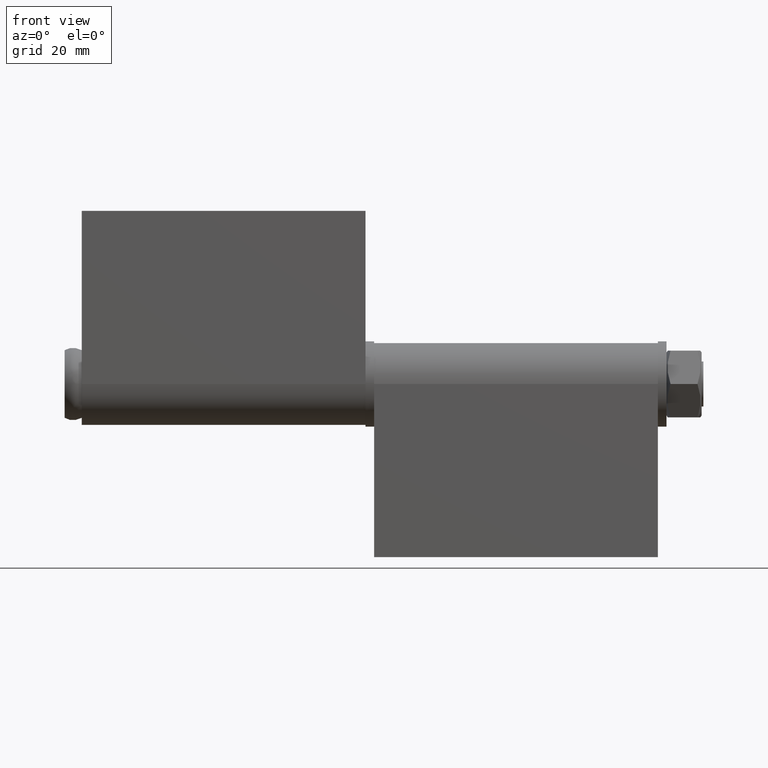
[diagram: clean part render]
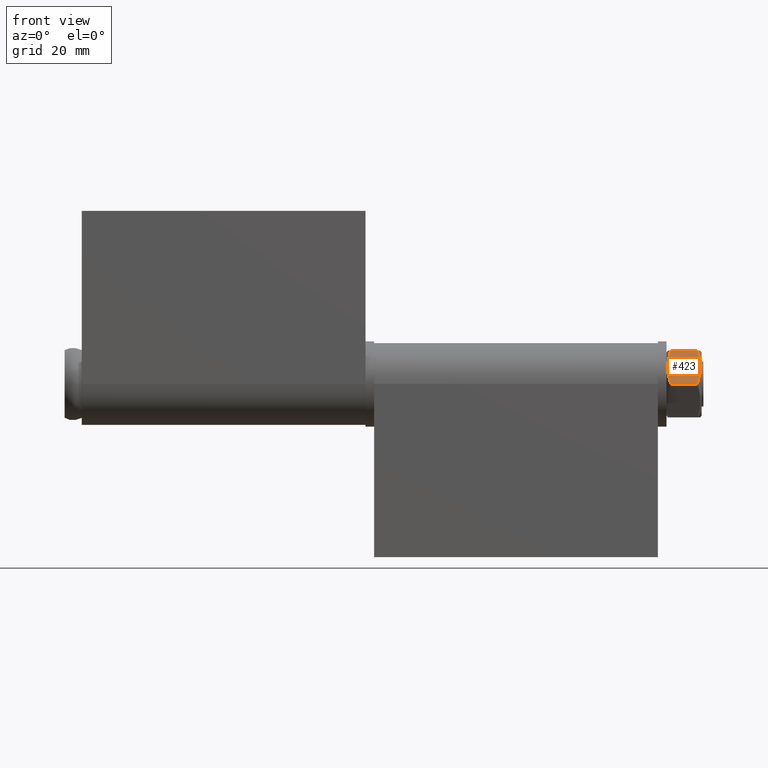
[diagram: same view with one face highlighted and labeled with its STEP entity id]
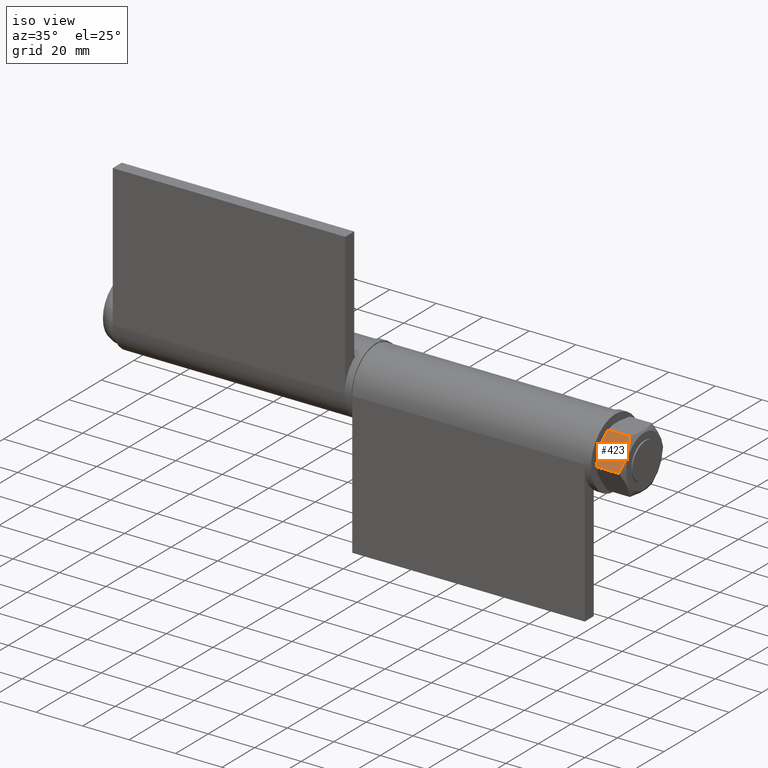
[diagram: same view with one face highlighted and labeled with its STEP entity id]
A machine part, front view. The second image highlights one B-rep face of the part: STEP entity #423.
A second angle (iso view) of the same face is appended — the face is thin or edge-on in the first view.
In plain terms, the highlighted planar face has unit normal (0, -0.866, 0.5).
Its self-contained STEP definition (entity closure, byte-faithful):
#37=(
BOUNDED_CURVE()
B_SPLINE_CURVE(2,(#762,#763,#764),.UNSPECIFIED.,.F.,.F.)
B_SPLINE_CURVE_WITH_KNOTS((3,3),(0.,1.37617771445435),.UNSPECIFIED.)
CURVE()
GEOMETRIC_REPRESENTATION_ITEM()
RATIONAL_B_SPLINE_CURVE((1.,1.15470053837925,1.))
REPRESENTATION_ITEM('')
);
#38=(
BOUNDED_CURVE()
B_SPLINE_CURVE(2,(#768,#769,#770),.UNSPECIFIED.,.F.,.F.)
B_SPLINE_CURVE_WITH_KNOTS((3,3),(0.,1.37617771445435),.UNSPECIFIED.)
CURVE()
GEOMETRIC_REPRESENTATION_ITEM()
RATIONAL_B_SPLINE_CURVE((1.,1.15470053837925,1.))
REPRESENTATION_ITEM('')
);
#63=LINE('',#766,#83);
#64=LINE('',#771,#84);
#83=VECTOR('',#563,9.51324865405187);
#84=VECTOR('',#564,9.51324865405187);
#138=FACE_OUTER_BOUND('',#169,.T.);
#169=EDGE_LOOP('',(#340,#341,#342,#343));
#225=VERTEX_POINT('',#760);
#226=VERTEX_POINT('',#761);
#227=VERTEX_POINT('',#765);
#228=VERTEX_POINT('',#767);
#268=EDGE_CURVE('',#225,#226,#37,.T.);
#269=EDGE_CURVE('',#226,#227,#63,.T.);
#270=EDGE_CURVE('',#227,#228,#38,.T.);
#271=EDGE_CURVE('',#225,#228,#64,.T.);
#340=ORIENTED_EDGE('',*,*,#268,.T.);
#341=ORIENTED_EDGE('',*,*,#269,.T.);
#342=ORIENTED_EDGE('',*,*,#270,.T.);
#343=ORIENTED_EDGE('',*,*,#271,.F.);
#399=PLANE('',#467);
#423=ADVANCED_FACE('',(#138),#399,.T.);
#467=AXIS2_PLACEMENT_3D('',#759,#561,#562);
#561=DIRECTION('center_axis',(0.499999999999999,-0.866025403784439,0.));
#562=DIRECTION('ref_axis',(0.866025403784439,0.499999999999999,0.));
#563=DIRECTION('',(0.,0.,-1.));
#564=DIRECTION('',(0.,0.,-1.));
#759=CARTESIAN_POINT('Origin',(-1.11022302462516E-14,-13.6,0.));
#760=CARTESIAN_POINT('',(11.7779454914684,-6.80000000000002,4.75662432702594));
#761=CARTESIAN_POINT('',(-1.33226762955019E-14,-13.6,4.75662432702594));
#762=CARTESIAN_POINT('Ctrl Pts',(11.7779454914684,-6.80000000000001,4.75662432702594));
#763=CARTESIAN_POINT('Ctrl Pts',(5.88897274573418,-10.2,6.71961524227067));
#764=CARTESIAN_POINT('Ctrl Pts',(-9.78075020884348E-15,-13.6,4.75662432702594));
#765=CARTESIAN_POINT('',(-8.91776885249614E-15,-13.6,-4.75662432702594));
#766=CARTESIAN_POINT('',(-1.33226762955019E-14,-13.6,0.));
#767=CARTESIAN_POINT('',(11.7779454914684,-6.80000000000001,-4.75662432702594));
#768=CARTESIAN_POINT('Ctrl Pts',(-9.78075020884348E-15,-13.6,-4.75662432702594));
#769=CARTESIAN_POINT('Ctrl Pts',(5.88897274573418,-10.2,-6.71961524227067));
#770=CARTESIAN_POINT('Ctrl Pts',(11.7779454914684,-6.80000000000001,-4.75662432702594));
#771=CARTESIAN_POINT('',(11.7779454914684,-6.80000000000002,0.));